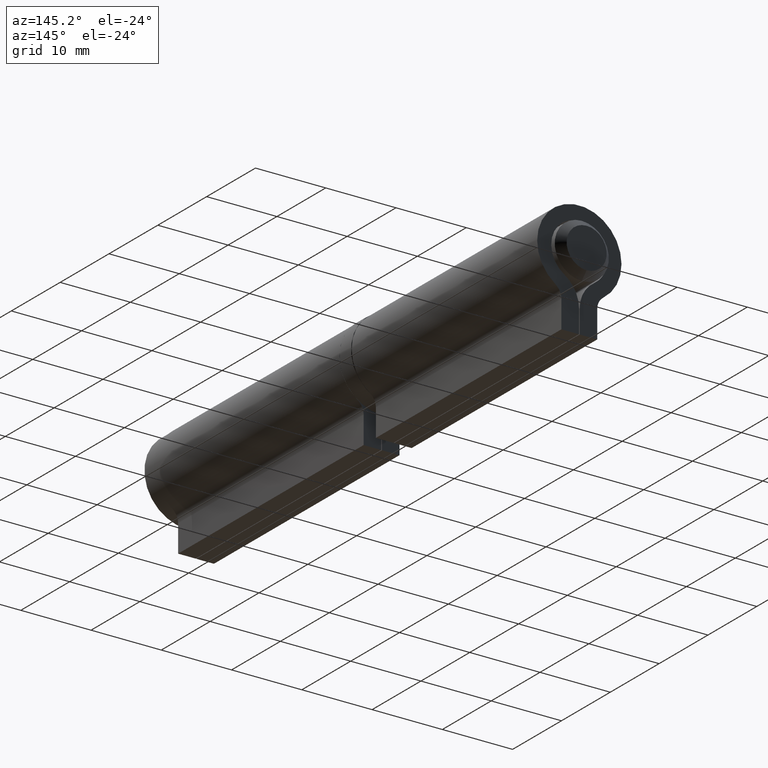
[diagram: clean part render]
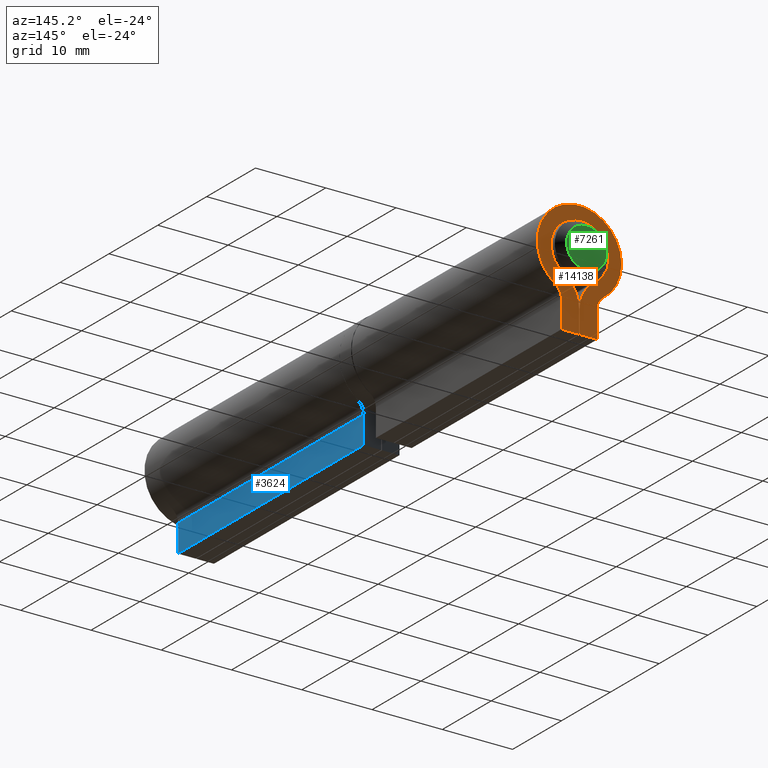
[diagram: same view with three faces highlighted in distinct colors, each labeled with its STEP entity id]
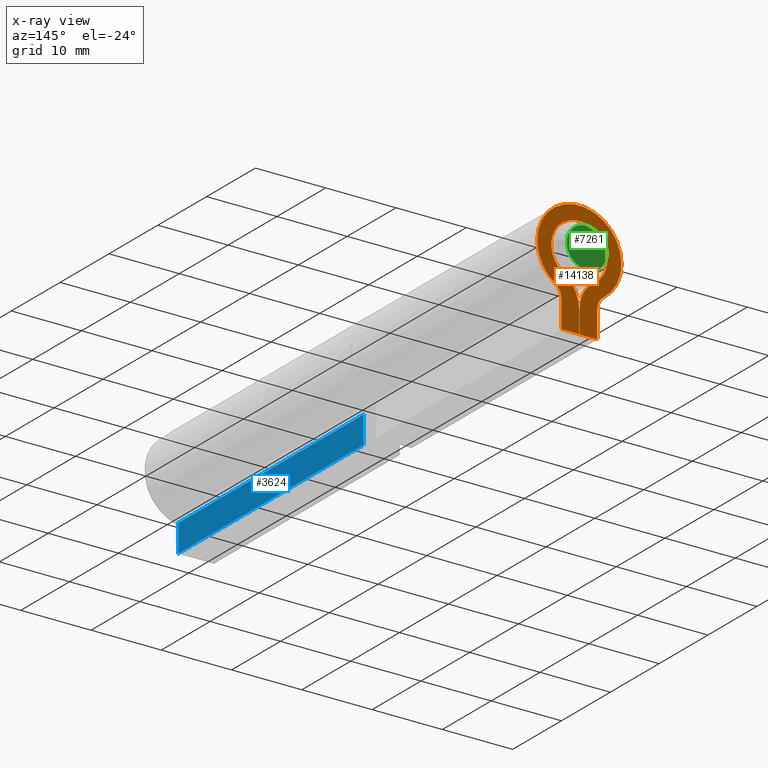
[diagram: x-ray of the same camera — body ghosted, the three highlighted faces saturated]
A machine part, auxiliary view with three faces highlighted in distinct colors.
The next image is the same camera in x-ray (body ghosted, the three faces saturated) — at least one of them is partly hidden behind the body in this view.
Their STEP definitions:

[orange] entity #14138 — the highlighted planar face has unit normal (0, 1, 0).
#28 = VERTEX_POINT ( 'NONE', #2923 ) ;
#361 = DIRECTION ( 'NONE',  ( 1.106352338166817511E-16, 0.000000000000000000, 1.000000000000000000 ) ) ;
#447 = CIRCLE ( 'NONE', #3106, 3.999999999999999112 ) ;
#519 = EDGE_CURVE ( 'NONE', #6528, #4584, #3089, .T. ) ;
#866 = CARTESIAN_POINT ( 'NONE',  ( -0.04999999999999969746, 19.00000000000000355, -7.179658766264593872 ) ) ;
#946 = CARTESIAN_POINT ( 'NONE',  ( 4.549999999999998934, 19.00000000000000355, -7.179658766264592984 ) ) ;
#1457 = CARTESIAN_POINT ( 'NONE',  ( -2.549999999999999378, 19.00000000000000355, -6.580083586095240911 ) ) ;
#1539 = CARTESIAN_POINT ( 'NONE',  ( -4.549999999999998934, 19.00000000000000355, -6.580083586095240911 ) ) ;
#1691 = ORIENTED_EDGE ( 'NONE', *, *, #12127, .T. ) ;
#1709 = CARTESIAN_POINT ( 'NONE',  ( 2.550000000000000266, 19.00000000000000355, -10.50000000000000000 ) ) ;
#1754 = AXIS2_PLACEMENT_3D ( 'NONE', #946, #11372, #7962 ) ;
#2107 = CARTESIAN_POINT ( 'NONE',  ( 2.550000000000000266, 19.00000000000000355, -10.50000000000000000 ) ) ;
#2109 = EDGE_LOOP ( 'NONE', ( #1691, #7746, #3937, #11365, #14810, #9175, #2477, #6696, #4269, #8639, #2969, #2583 ) ) ;
#2273 = CIRCLE ( 'NONE', #7907, 4.500000000000000888 ) ;
#2437 = LINE ( 'NONE', #6547, #7587 ) ;
#2477 = ORIENTED_EDGE ( 'NONE', *, *, #5941, .T. ) ;
#2545 = DIRECTION ( 'NONE',  ( -0.000000000000000000, -1.000000000000000000, 0.000000000000000000 ) ) ;
#2583 = ORIENTED_EDGE ( 'NONE', *, *, #8729, .T. ) ;
#2622 = DIRECTION ( 'NONE',  ( -7.347000553156944694E-17, -0.000000000000000000, -1.000000000000000000 ) ) ;
#2889 = DIRECTION ( 'NONE',  ( 0.000000000000000000, 1.000000000000000000, 0.000000000000000000 ) ) ;
#2923 = CARTESIAN_POINT ( 'NONE',  ( 3.412500000000000089, 19.00000000000000355, -4.935062689571429573 ) ) ;
#2956 = CARTESIAN_POINT ( 'NONE',  ( 0.04999999999999883010, 19.00000000000000355, -7.179658766264593872 ) ) ;
#2969 = ORIENTED_EDGE ( 'NONE', *, *, #3003, .T. ) ;
#2974 = VECTOR ( 'NONE', #9991, 1000.000000000000000 ) ;
#3003 = EDGE_CURVE ( 'NONE', #28, #10264, #14229, .T. ) ;
#3089 = CIRCLE ( 'NONE', #11283, 4.500000000000000000 ) ;
#3106 = AXIS2_PLACEMENT_3D ( 'NONE', #4407, #13920, #13763 ) ;
#3376 = EDGE_CURVE ( 'NONE', #8122, #6528, #447, .T. ) ;
#3737 = AXIS2_PLACEMENT_3D ( 'NONE', #13708, #4351, #4253 ) ;
#3848 = CARTESIAN_POINT ( 'NONE',  ( -2.550000000000000266, 19.00000000000000355, -10.50000000000000000 ) ) ;
#3901 = DIRECTION ( 'NONE',  ( 0.000000000000000000, 0.000000000000000000, -1.000000000000000000 ) ) ;
#3937 = ORIENTED_EDGE ( 'NONE', *, *, #5563, .T. ) ;
#4241 = VERTEX_POINT ( 'NONE', #2956 ) ;
#4253 = DIRECTION ( 'NONE',  ( 0.000000000000000000, 0.000000000000000000, 1.000000000000000000 ) ) ;
#4269 = ORIENTED_EDGE ( 'NONE', *, *, #10647, .T. ) ;
#4351 = DIRECTION ( 'NONE',  ( 0.000000000000000000, 1.000000000000000000, 0.000000000000000000 ) ) ;
#4407 = CARTESIAN_POINT ( 'NONE',  ( 0.000000000000000000, 19.00000000000000355, 0.000000000000000000 ) ) ;
#4563 = CARTESIAN_POINT ( 'NONE',  ( 2.141176470588235237, 19.00000000000000355, -3.378662948830394974 ) ) ;
#4574 = DIRECTION ( 'NONE',  ( -1.000000000000000000, 0.000000000000000000, 0.000000000000000000 ) ) ;
#4584 = VERTEX_POINT ( 'NONE', #866 ) ;
#4884 = VECTOR ( 'NONE', #2622, 1000.000000000000000 ) ;
#4993 = VERTEX_POINT ( 'NONE', #1457 ) ;
#5246 = VECTOR ( 'NONE', #14833, 1000.000000000000000 ) ;
#5379 = CARTESIAN_POINT ( 'NONE',  ( 4.549999999999998934, 19.00000000000000355, -7.179658766264592984 ) ) ;
#5414 = CARTESIAN_POINT ( 'NONE',  ( 2.549999999999999822, 19.00000000000000355, -6.580083586095240911 ) ) ;
#5563 = EDGE_CURVE ( 'NONE', #4241, #8122, #2273, .T. ) ;
#5736 = VERTEX_POINT ( 'NONE', #8719 ) ;
#5921 = VERTEX_POINT ( 'NONE', #10052 ) ;
#5941 = EDGE_CURVE ( 'NONE', #5736, #5977, #2437, .T. ) ;
#5977 = VERTEX_POINT ( 'NONE', #3848 ) ;
#6109 = VECTOR ( 'NONE', #361, 1000.000000000000000 ) ;
#6161 = CARTESIAN_POINT ( 'NONE',  ( -0.04999999999999994033, 19.00000000000000355, -10.50000000000000000 ) ) ;
#6528 = VERTEX_POINT ( 'NONE', #9020 ) ;
#6547 = CARTESIAN_POINT ( 'NONE',  ( -2.550000000000000266, 19.00000000000000355, -10.50000000000000000 ) ) ;
#6590 = DIRECTION ( 'NONE',  ( 0.000000000000000000, 0.000000000000000000, 1.000000000000000000 ) ) ;
#6665 = VERTEX_POINT ( 'NONE', #8372 ) ;
#6691 = VERTEX_POINT ( 'NONE', #10893 ) ;
#6696 = ORIENTED_EDGE ( 'NONE', *, *, #8168, .T. ) ;
#6733 = CIRCLE ( 'NONE', #8489, 2.000000000000000000 ) ;
#7315 = LINE ( 'NONE', #9951, #5246 ) ;
#7452 = VECTOR ( 'NONE', #4574, 1000.000000000000000 ) ;
#7587 = VECTOR ( 'NONE', #8738, 1000.000000000000000 ) ;
#7746 = ORIENTED_EDGE ( 'NONE', *, *, #10442, .T. ) ;
#7907 = AXIS2_PLACEMENT_3D ( 'NONE', #5379, #2889, #6590 ) ;
#7962 = DIRECTION ( 'NONE',  ( 0.000000000000000000, -0.000000000000000000, 1.000000000000000000 ) ) ;
#8013 = LINE ( 'NONE', #6161, #4884 ) ;
#8122 = VERTEX_POINT ( 'NONE', #4563 ) ;
#8168 = EDGE_CURVE ( 'NONE', #5977, #4993, #12496, .T. ) ;
#8372 = CARTESIAN_POINT ( 'NONE',  ( -3.412499999999998757, 19.00000000000000355, -4.935062689571429573 ) ) ;
#8489 = AXIS2_PLACEMENT_3D ( 'NONE', #1539, #2545, #13296 ) ;
#8639 = ORIENTED_EDGE ( 'NONE', *, *, #12716, .T. ) ;
#8719 = CARTESIAN_POINT ( 'NONE',  ( -0.04999999999999994033, 19.00000000000000355, -10.50000000000000000 ) ) ;
#8729 = EDGE_CURVE ( 'NONE', #10264, #5921, #9952, .T. ) ;
#8738 = DIRECTION ( 'NONE',  ( -1.000000000000000000, -0.000000000000000000, -0.000000000000000000 ) ) ;
#8934 = DIRECTION ( 'NONE',  ( -0.000000000000000000, -1.000000000000000000, 0.000000000000000000 ) ) ;
#9020 = CARTESIAN_POINT ( 'NONE',  ( -2.141176470588233904, 19.00000000000000355, -3.378662948830397195 ) ) ;
#9175 = ORIENTED_EDGE ( 'NONE', *, *, #11184, .T. ) ;
#9250 = CIRCLE ( 'NONE', #3737, 5.999999999999999112 ) ;
#9672 = CARTESIAN_POINT ( 'NONE',  ( -2.550000000000000266, 19.00000000000000355, -10.50000000000000000 ) ) ;
#9952 = LINE ( 'NONE', #1709, #2974 ) ;
#9951 = CARTESIAN_POINT ( 'NONE',  ( 0.04999999999999994033, 19.00000000000000355, -10.50000000000000000 ) ) ;
#9991 = DIRECTION ( 'NONE',  ( 1.106352338166817511E-16, -0.000000000000000000, -1.000000000000000000 ) ) ;
#10052 = CARTESIAN_POINT ( 'NONE',  ( 2.550000000000000266, 19.00000000000000355, -10.50000000000000000 ) ) ;
#10264 = VERTEX_POINT ( 'NONE', #5414 ) ;
#10442 = EDGE_CURVE ( 'NONE', #6691, #4241, #7315, .T. ) ;
#10647 = EDGE_CURVE ( 'NONE', #4993, #6665, #6733, .T. ) ;
#10893 = CARTESIAN_POINT ( 'NONE',  ( 0.04999999999999994033, 19.00000000000000355, -10.50000000000000000 ) ) ;
#11184 = EDGE_CURVE ( 'NONE', #4584, #5736, #8013, .T. ) ;
#11283 = AXIS2_PLACEMENT_3D ( 'NONE', #13473, #13375, #3901 ) ;
#11365 = ORIENTED_EDGE ( 'NONE', *, *, #3376, .T. ) ;
#11372 = DIRECTION ( 'NONE',  ( 0.000000000000000000, 1.000000000000000000, 0.000000000000000000 ) ) ;
#11871 = AXIS2_PLACEMENT_3D ( 'NONE', #12402, #8934, #14703 ) ;
#12021 = LINE ( 'NONE', #2107, #7452 ) ;
#12127 = EDGE_CURVE ( 'NONE', #5921, #6691, #12021, .T. ) ;
#12402 = CARTESIAN_POINT ( 'NONE',  ( 4.549999999999998934, 19.00000000000000355, -6.580083586095240911 ) ) ;
#12496 = LINE ( 'NONE', #9672, #6109 ) ;
#12547 = PLANE ( 'NONE',  #1754 ) ;
#12716 = EDGE_CURVE ( 'NONE', #6665, #28, #9250, .T. ) ;
#13296 = DIRECTION ( 'NONE',  ( 0.000000000000000000, 0.000000000000000000, -1.000000000000000000 ) ) ;
#13375 = DIRECTION ( 'NONE',  ( 0.000000000000000000, 1.000000000000000000, -0.000000000000000000 ) ) ;
#13473 = CARTESIAN_POINT ( 'NONE',  ( -4.549999999999998934, 19.00000000000000355, -7.179658766264592984 ) ) ;
#13708 = CARTESIAN_POINT ( 'NONE',  ( 0.000000000000000000, 19.00000000000000355, 0.000000000000000000 ) ) ;
#13763 = DIRECTION ( 'NONE',  ( 0.000000000000000000, 0.000000000000000000, 1.000000000000000000 ) ) ;
#13920 = DIRECTION ( 'NONE',  ( -0.000000000000000000, -1.000000000000000000, -0.000000000000000000 ) ) ;
#14138 = ADVANCED_FACE ( 'NONE', ( #15098 ), #12547, .T. ) ;
#14229 = CIRCLE ( 'NONE', #11871, 2.000000000000000000 ) ;
#14703 = DIRECTION ( 'NONE',  ( 0.000000000000000000, 0.000000000000000000, -1.000000000000000000 ) ) ;
#14810 = ORIENTED_EDGE ( 'NONE', *, *, #519, .T. ) ;
#14833 = DIRECTION ( 'NONE',  ( -7.347000553156944694E-17, 0.000000000000000000, 1.000000000000000000 ) ) ;
#15098 = FACE_OUTER_BOUND ( 'NONE', #2109, .T. ) ;

[blue] entity #3624 — the highlighted planar face has unit normal (-1, 0, -0).
#44 = LINE ( 'NONE', #1498, #12907 ) ;
#307 = PLANE ( 'NONE',  #12239 ) ;
#1430 = CARTESIAN_POINT ( 'NONE',  ( 2.549999999999999822, 19.00000000000000000, -10.50000000000000000 ) ) ;
#1498 = CARTESIAN_POINT ( 'NONE',  ( 2.549999999999999822, -19.00000000000000355, -10.50000000000000000 ) ) ;
#1929 = LINE ( 'NONE', #15125, #4510 ) ;
#2582 = DIRECTION ( 'NONE',  ( -1.106352338166817511E-16, 0.000000000000000000, 1.000000000000000000 ) ) ;
#3197 = CARTESIAN_POINT ( 'NONE',  ( 2.549999999999999822, 19.00000000000000000, -10.50000000000000000 ) ) ;
#3352 = DIRECTION ( 'NONE',  ( 1.106352338166817511E-16, -0.000000000000000000, -1.000000000000000000 ) ) ;
#3624 = ADVANCED_FACE ( 'NONE', ( #14399 ), #307, .F. ) ;
#3717 = DIRECTION ( 'NONE',  ( -1.000000000000000000, 0.000000000000000000, -1.106352338166817511E-16 ) ) ;
#3823 = EDGE_CURVE ( 'NONE', #11062, #9935, #13851, .T. ) ;
#3824 = EDGE_CURVE ( 'NONE', #9935, #11334, #1929, .T. ) ;
#3933 = ORIENTED_EDGE ( 'NONE', *, *, #7718, .T. ) ;
#4510 = VECTOR ( 'NONE', #8123, 1000.000000000000000 ) ;
#4579 = CARTESIAN_POINT ( 'NONE',  ( 2.549999999999999822, 19.00000000000000000, -10.50000000000000000 ) ) ;
#4871 = CARTESIAN_POINT ( 'NONE',  ( 2.549999999999999378, -19.00000000000000355, -6.580083586095240911 ) ) ;
#5040 = VECTOR ( 'NONE', #3352, 1000.000000000000000 ) ;
#7695 = ORIENTED_EDGE ( 'NONE', *, *, #3824, .F. ) ;
#7718 = EDGE_CURVE ( 'NONE', #9030, #11334, #44, .T. ) ;
#8055 = DIRECTION ( 'NONE',  ( -0.000000000000000000, -1.000000000000000000, -0.000000000000000000 ) ) ;
#8123 = DIRECTION ( 'NONE',  ( -0.000000000000000000, -1.000000000000000000, -0.000000000000000000 ) ) ;
#8654 = DIRECTION ( 'NONE',  ( 1.106352338166817511E-16, -0.000000000000000000, -1.000000000000000000 ) ) ;
#8656 = ORIENTED_EDGE ( 'NONE', *, *, #14500, .T. ) ;
#8684 = LINE ( 'NONE', #13876, #13622 ) ;
#9030 = VERTEX_POINT ( 'NONE', #4871 ) ;
#9935 = VERTEX_POINT ( 'NONE', #3197 ) ;
#11062 = VERTEX_POINT ( 'NONE', #13126 ) ;
#11212 = CARTESIAN_POINT ( 'NONE',  ( 2.549999999999999822, -19.00000000000000355, -10.50000000000000000 ) ) ;
#11334 = VERTEX_POINT ( 'NONE', #11212 ) ;
#12239 = AXIS2_PLACEMENT_3D ( 'NONE', #1430, #3717, #2582 ) ;
#12907 = VECTOR ( 'NONE', #8654, 1000.000000000000000 ) ;
#13126 = CARTESIAN_POINT ( 'NONE',  ( 2.549999999999999378, 19.00000000000000000, -6.580083586095240911 ) ) ;
#13279 = EDGE_LOOP ( 'NONE', ( #3933, #7695, #13465, #8656 ) ) ;
#13465 = ORIENTED_EDGE ( 'NONE', *, *, #3823, .F. ) ;
#13622 = VECTOR ( 'NONE', #8055, 1000.000000000000000 ) ;
#13851 = LINE ( 'NONE', #4579, #5040 ) ;
#13876 = CARTESIAN_POINT ( 'NONE',  ( 2.549999999999999378, 19.00000000000000000, -6.580083586095240911 ) ) ;
#14399 = FACE_OUTER_BOUND ( 'NONE', #13279, .T. ) ;
#14500 = EDGE_CURVE ( 'NONE', #11062, #9030, #8684, .T. ) ;
#15125 = CARTESIAN_POINT ( 'NONE',  ( 2.549999999999999822, 19.00000000000000000, -10.50000000000000000 ) ) ;

[green] entity #7261 — the highlighted planar face has unit normal (0, -1, 0).
#263 = CARTESIAN_POINT ( 'NONE',  ( 3.850000000000009859, 41.50000000000000000, 0.000000000000000000 ) ) ;
#928 = AXIS2_PLACEMENT_3D ( 'NONE', #263, #2697, #13183 ) ;
#1939 = AXIS2_PLACEMENT_3D ( 'NONE', #5062, #14339, #7319 ) ;
#2697 = DIRECTION ( 'NONE',  ( 0.000000000000000000, -1.000000000000000000, 0.000000000000000000 ) ) ;
#3830 = PLANE ( 'NONE',  #928 ) ;
#4807 = FACE_OUTER_BOUND ( 'NONE', #8137, .T. ) ;
#5062 = CARTESIAN_POINT ( 'NONE',  ( 6.938893903907228378E-15, 41.50000000000000000, 0.000000000000000000 ) ) ;
#6290 = VERTEX_POINT ( 'NONE', #11200 ) ;
#7261 = ADVANCED_FACE ( 'NONE', ( #4807 ), #3830, .F. ) ;
#7319 = DIRECTION ( 'NONE',  ( 0.000000000000000000, 0.000000000000000000, -1.000000000000000000 ) ) ;
#8137 = EDGE_LOOP ( 'NONE', ( #14173 ) ) ;
#11200 = CARTESIAN_POINT ( 'NONE',  ( 6.938893903907228378E-15, 41.50000000000000000, -2.850000000000012079 ) ) ;
#11248 = EDGE_CURVE ( 'NONE', #6290, #6290, #13860, .T. ) ;
#13183 = DIRECTION ( 'NONE',  ( 0.000000000000000000, -0.000000000000000000, -1.000000000000000000 ) ) ;
#13860 = CIRCLE ( 'NONE', #1939, 2.850000000000012079 ) ;
#14173 = ORIENTED_EDGE ( 'NONE', *, *, #11248, .T. ) ;
#14339 = DIRECTION ( 'NONE',  ( -0.000000000000000000, 1.000000000000000000, -0.000000000000000000 ) ) ;